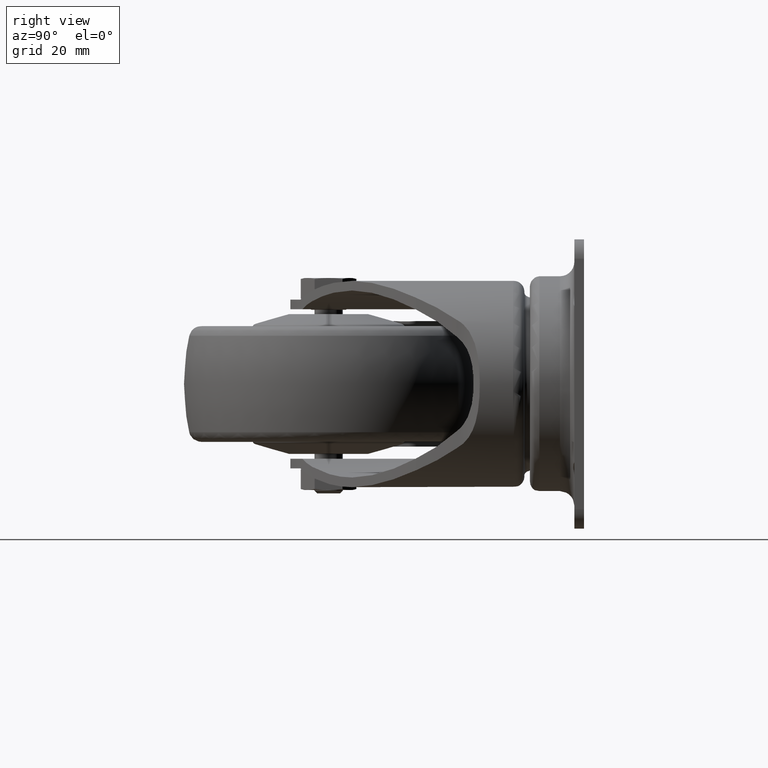
[diagram: clean part render]
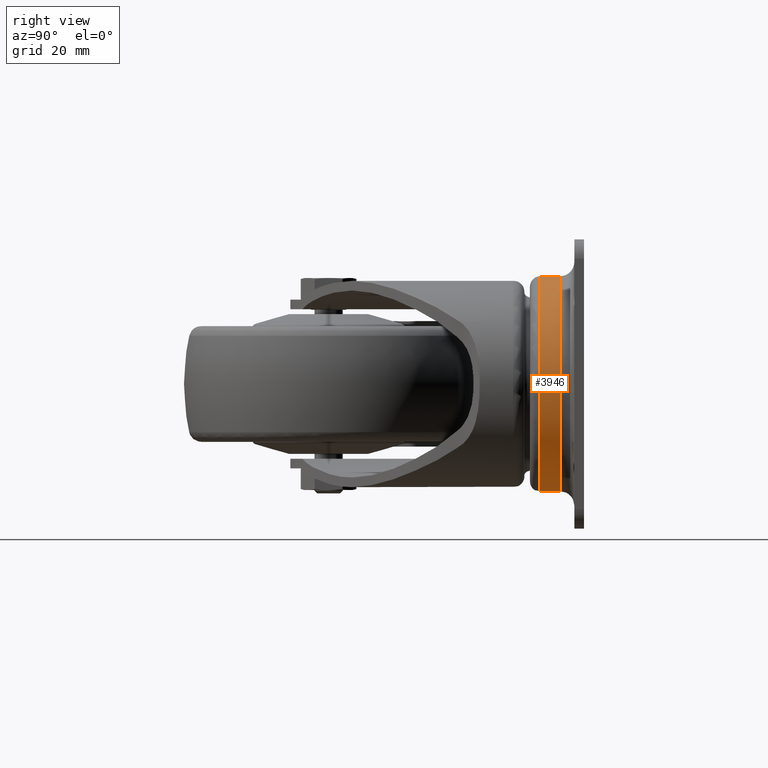
[diagram: same view with one face highlighted and labeled with its STEP entity id]
A machine part, right view. The second image highlights one B-rep face of the part: STEP entity #3946.
In plain terms, the highlighted cylindrical surface (bore or boss wall) has radius 22.36 mm, axis along (0, -1, 0).
Its self-contained STEP definition (entity closure, byte-faithful):
#357=LINE('',#7415,#588);
#588=VECTOR('',#5710,22.3600000000001);
#687=CYLINDRICAL_SURFACE('',#4624,22.3600000000001);
#1026=FACE_OUTER_BOUND('',#1299,.T.);
#1299=EDGE_LOOP('',(#3434,#3435,#3436,#3437));
#1571=CIRCLE('',#4623,22.3600000000001);
#1572=CIRCLE('',#4625,22.3600000000001);
#1978=VERTEX_POINT('',#7410);
#1979=VERTEX_POINT('',#7414);
#2495=EDGE_CURVE('',#1978,#1978,#1571,.T.);
#2496=EDGE_CURVE('',#1978,#1979,#357,.T.);
#2497=EDGE_CURVE('',#1979,#1979,#1572,.T.);
#3434=ORIENTED_EDGE('',*,*,#2495,.F.);
#3435=ORIENTED_EDGE('',*,*,#2496,.T.);
#3436=ORIENTED_EDGE('',*,*,#2497,.T.);
#3437=ORIENTED_EDGE('',*,*,#2496,.F.);
#3946=ADVANCED_FACE('',(#1026),#687,.T.);
#4623=AXIS2_PLACEMENT_3D('',#7412,#5706,#5707);
#4624=AXIS2_PLACEMENT_3D('',#7413,#5708,#5709);
#4625=AXIS2_PLACEMENT_3D('',#7416,#5711,#5712);
#5706=DIRECTION('center_axis',(0.,-1.,0.));
#5707=DIRECTION('ref_axis',(0.,0.,-1.));
#5708=DIRECTION('center_axis',(0.,-1.,0.));
#5709=DIRECTION('ref_axis',(0.,0.,-1.));
#5710=DIRECTION('',(0.,1.,0.));
#5711=DIRECTION('center_axis',(0.,-1.,0.));
#5712=DIRECTION('ref_axis',(0.,0.,-1.));
#7410=CARTESIAN_POINT('',(18.,43.7350000000005,22.3600000000001));
#7412=CARTESIAN_POINT('Origin',(18.,43.7350000000005,0.));
#7413=CARTESIAN_POINT('Origin',(18.,32.3379999999999,0.));
#7414=CARTESIAN_POINT('',(18.,48.,22.3600000000001));
#7415=CARTESIAN_POINT('',(18.,32.3379999999999,22.3600000000001));
#7416=CARTESIAN_POINT('Origin',(18.,48.,0.));